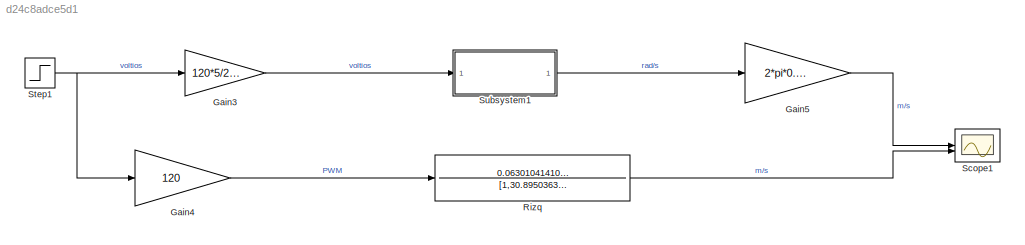
MODEL slx_d24c8adce5d1
KIND model
CONFIG AbsTol = auto
CONFIG EnableMultiTasking = on
CONFIG FixedStep = auto
CONFIG MaxStep = auto
CONFIG MinStep = auto
CONFIG RelTol = 1e-3
CONFIG SampleTimeConstraint = Unconstrained
CONFIG SolverName = FixedStepAuto
CONFIG StartTime = 0.0
CONFIG StopTime = 2.0
BLOCK [Gain] Gain3
  Gain = 120*5/255
BLOCK [Gain] Gain4
  Gain = 120
BLOCK [Gain] Gain5
  Gain = 2*pi*0.0335/2*pi
BLOCK [TransferFcn] Rizq
  Denominator = [1,30.895036391602357]
  Numerator = 0.063010414107422
BLOCK [Scope] Scope1
  Floating = off
  NumInputPorts = 2
  ScopeSpecificationString = Simulink.scopes.TimeScopeBlockCfg('CurrentConfiguration', extmgr.ConfigurationSet(extmgr.Configuration('Core','General UI',true),extmgr.Configuration('Core','Source UI',true),extmgr.Configuration('Sources','WiredSimulink',true,'DataLoggingVariableName','ScopeData1'),extmgr.Configuration('Visuals','Time Domain',true,'SerializedDisplays',{struct('MinYLimReal','-0.09724','MaxYLimReal','0.8752','YLabe...<+1519ch>
BLOCK [Step] Step1
  SampleTime = 0
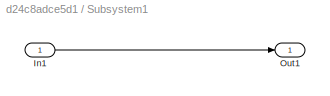
BLOCK [SubSystem] Subsystem1
BLOCK [Inport] Subsystem1/In1
BLOCK [Outport] Subsystem1/Out1
LINE Gain3:1 -> Subsystem1:1
LINE Gain4:1 -> Rizq:1
LINE Gain5:1 -> Scope1:1
LINE Rizq:1 -> Scope1:2
NET Step1:1 -> Gain3:1, Gain4:1
LINE Subsystem1/In1:1 -> Subsystem1/Out1:1
LINE Subsystem1:1 -> Gain5:1
note: NET lines group one-source signal fan-out (src -> all destinations, sorted); 1:1 wires keep LINE
